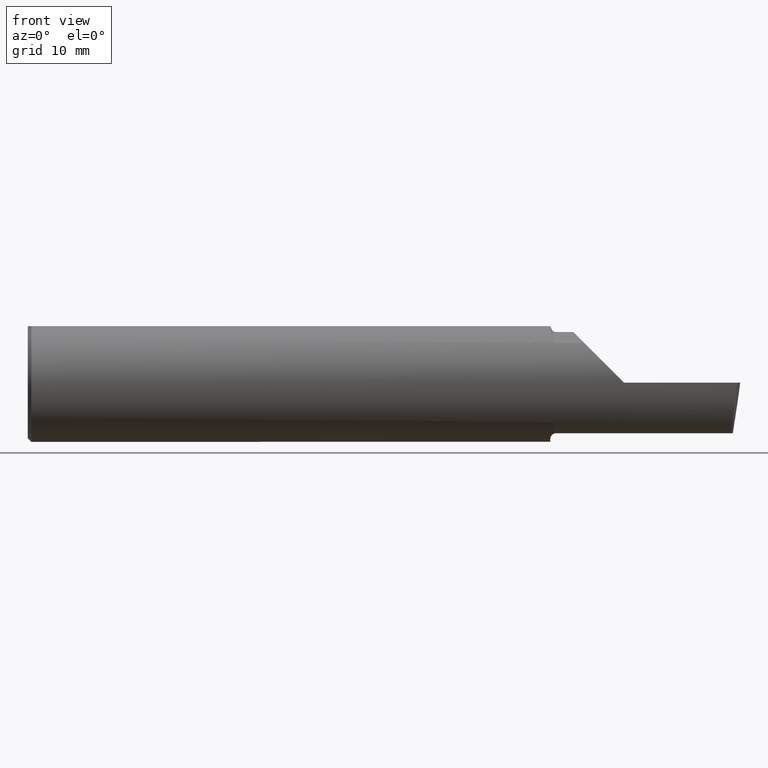
[diagram: clean part render]
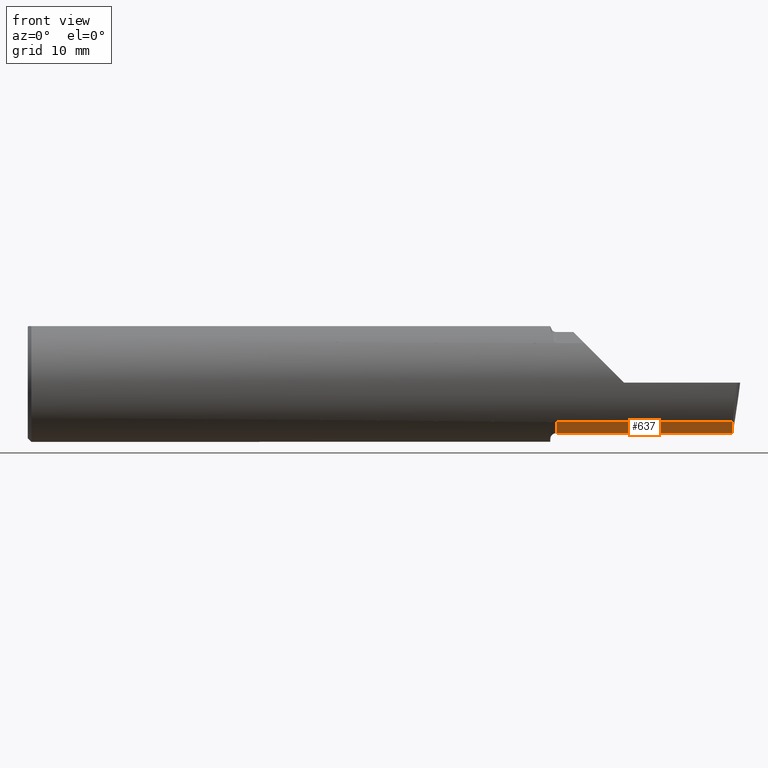
[diagram: same view with one face highlighted and labeled with its STEP entity id]
A machine part, front view. The second image highlights one B-rep face of the part: STEP entity #637.
In plain terms, the highlighted cylindrical surface (partial cylindrical patch) has radius 5.414 mm, axis along (-1, -0, -0).
Its self-contained STEP definition (entity closure, byte-faithful):
#17 = EDGE_CURVE ( 'NONE', #426, #57, #627, .T. ) ;
#42 = DIRECTION ( 'NONE',  ( -1.000000000000000000, -0.0000000000000000000, -0.0000000000000000000 ) ) ;
#52 = CARTESIAN_POINT ( 'NONE',  ( 2.225000000000000089, -0.1868028301886793530, -0.1659208399614086893 ) ) ;
#57 = VERTEX_POINT ( 'NONE', #594 ) ;
#89 = CARTESIAN_POINT ( 'NONE',  ( 3.000000000000000888, -0.05299999999999998462, -0.2131499999999999229 ) ) ;
#112 = ORIENTED_EDGE ( 'NONE', *, *, #324, .F. ) ;
#125 = CARTESIAN_POINT ( 'NONE',  ( 2.964907988924523341, -0.1021668565906570375, -0.2131499999999998396 ) ) ;
#147 = VECTOR ( 'NONE', #551, 39.37007874015748143 ) ;
#157 = EDGE_CURVE ( 'NONE', #302, #426, #531, .T. ) ;
#166 = CARTESIAN_POINT ( 'NONE',  ( 2.225000000000000089, -0.05299999999999998462, 0.0000000000000000000 ) ) ;
#194 = EDGE_LOOP ( 'NONE', ( #255, #294, #112, #340, #764 ) ) ;
#219 = CARTESIAN_POINT ( 'NONE',  ( 2.968492717492762889, -0.1868028301886794917, -0.1659208399614086338 ) ) ;
#224 = DIRECTION ( 'NONE',  ( 0.0000000000000000000, 0.0000000000000000000, 1.000000000000000000 ) ) ;
#251 = CARTESIAN_POINT ( 'NONE',  ( 2.965703997523711166, -0.1485302233682059825, -0.1967848538638755918 ) ) ;
#255 = ORIENTED_EDGE ( 'NONE', *, *, #17, .F. ) ;
#256 = LINE ( 'NONE', #702, #147 ) ;
#274 = CYLINDRICAL_SURFACE ( 'NONE', #495, 0.2131499999999999506 ) ;
#285 = DIRECTION ( 'NONE',  ( 0.0000000000000000000, 0.0000000000000000000, 1.000000000000000000 ) ) ;
#294 = ORIENTED_EDGE ( 'NONE', *, *, #157, .F. ) ;
#302 = VERTEX_POINT ( 'NONE', #768 ) ;
#315 = CIRCLE ( 'NONE', #431, 0.2131499999999999229 ) ;
#324 = EDGE_CURVE ( 'NONE', #664, #302, #616, .T. ) ;
#340 = ORIENTED_EDGE ( 'NONE', *, *, #717, .T. ) ;
#426 = VERTEX_POINT ( 'NONE', #584 ) ;
#431 = AXIS2_PLACEMENT_3D ( 'NONE', #166, #591, #224 ) ;
#443 = EDGE_CURVE ( 'NONE', #57, #502, #315, .T. ) ;
#479 = VECTOR ( 'NONE', #42, 39.37007874015748143 ) ;
#495 = AXIS2_PLACEMENT_3D ( 'NONE', #746, #517, #285 ) ;
#502 = VERTEX_POINT ( 'NONE', #52 ) ;
#508 = VECTOR ( 'NONE', #510, 39.37007874015748143 ) ;
#510 = DIRECTION ( 'NONE',  ( -1.000000000000000000, 5.691349986800549142E-18, -0.0000000000000000000 ) ) ;
#517 = DIRECTION ( 'NONE',  ( -1.000000000000000000, -0.0000000000000000000, -0.0000000000000000000 ) ) ;
#531 = LINE ( 'NONE', #89, #508 ) ;
#551 = DIRECTION ( 'NONE',  ( -1.000000000000000000, -0.0000000000000000000, -0.0000000000000000000 ) ) ;
#554 = CARTESIAN_POINT ( 'NONE',  ( 2.966195468375010247, -0.05299999999999998462, -0.2131499999999999229 ) ) ;
#584 = CARTESIAN_POINT ( 'NONE',  ( 2.545000000000000373, -0.05299999999999998462, -0.2131499999999999229 ) ) ;
#591 = DIRECTION ( 'NONE',  ( -1.000000000000000000, -0.0000000000000000000, -0.0000000000000000000 ) ) ;
#594 = CARTESIAN_POINT ( 'NONE',  ( 2.225000000000000089, -0.05299999999999996381, -0.2131499999999999229 ) ) ;
#597 = FACE_OUTER_BOUND ( 'NONE', #194, .T. ) ;
#603 = CARTESIAN_POINT ( 'NONE',  ( 2.968492717492762889, -0.1868028301886794917, -0.1659208399614086338 ) ) ;
#616 =( BOUNDED_CURVE ( )  B_SPLINE_CURVE ( 3, ( #603, #251, #125, #554 ),
 .UNSPECIFIED., .F., .T. ) 
 B_SPLINE_CURVE_WITH_KNOTS ( ( 4, 4 ),
 ( 5.814587959757516522, 6.493234751459755039 ),
 .UNSPECIFIED. ) 
 CURVE ( )  GEOMETRIC_REPRESENTATION_ITEM ( )  RATIONAL_B_SPLINE_CURVE ( ( 1.000000000000000000, 0.9619867256453025206, 0.9619867256453025206, 1.000000000000000000 ) ) 
 REPRESENTATION_ITEM ( '' )  );
#627 = LINE ( 'NONE', #641, #479 ) ;
#637 = ADVANCED_FACE ( 'NONE', ( #597 ), #274, .T. ) ;
#641 = CARTESIAN_POINT ( 'NONE',  ( 0.0000000000000000000, -0.05299999999999996381, -0.2131499999999999506 ) ) ;
#664 = VERTEX_POINT ( 'NONE', #219 ) ;
#702 = CARTESIAN_POINT ( 'NONE',  ( 2.385000000000000231, -0.1868028301886794917, -0.1659208399614086338 ) ) ;
#717 = EDGE_CURVE ( 'NONE', #664, #502, #256, .T. ) ;
#746 = CARTESIAN_POINT ( 'NONE',  ( 0.0000000000000000000, -0.05299999999999998462, 0.0000000000000000000 ) ) ;
#764 = ORIENTED_EDGE ( 'NONE', *, *, #443, .F. ) ;
#768 = CARTESIAN_POINT ( 'NONE',  ( 2.966195468375010247, -0.05299999999999998462, -0.2131499999999999229 ) ) ;